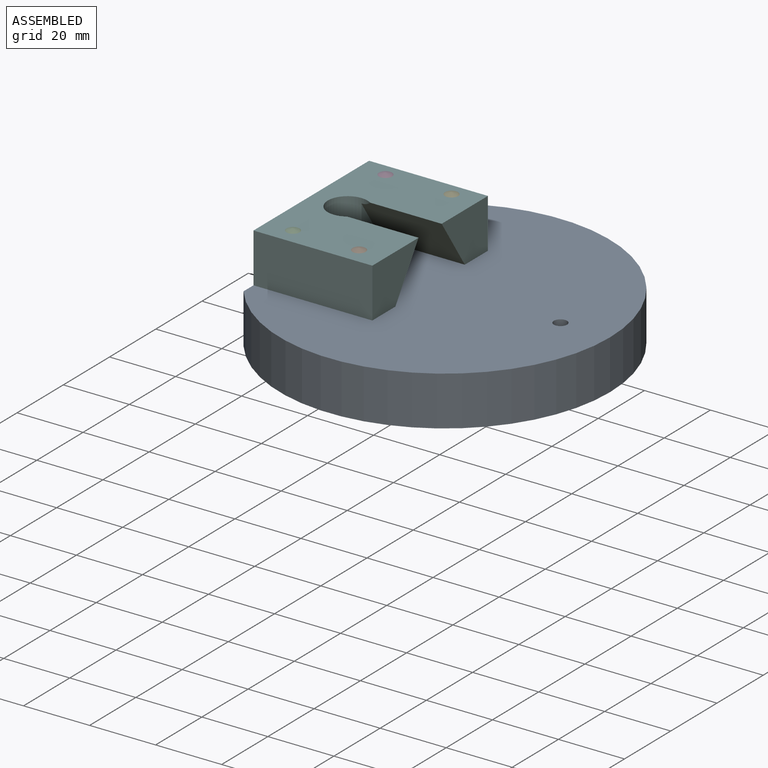
[diagram: assembled view]
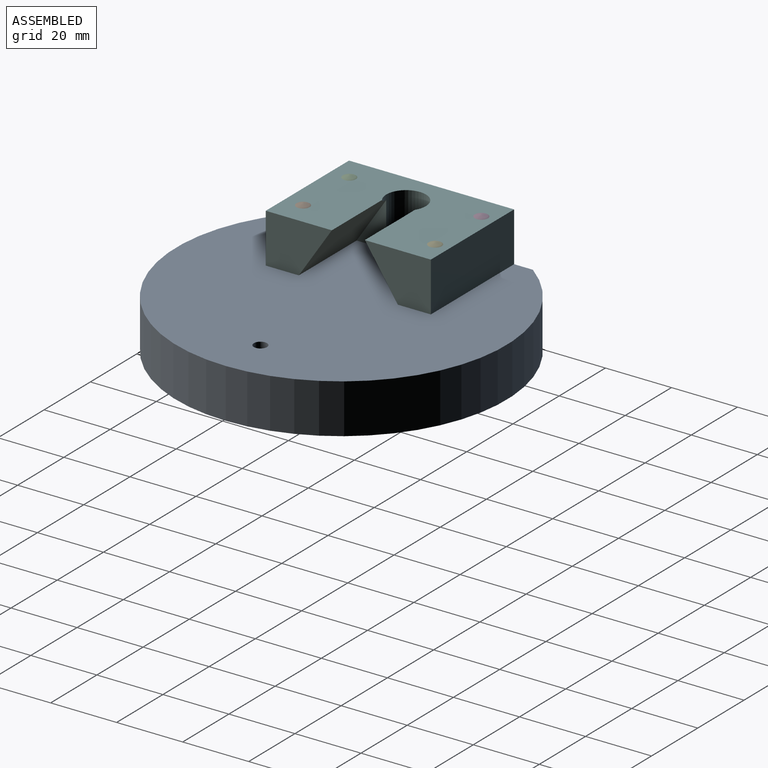
[diagram: assembled view, second angle]
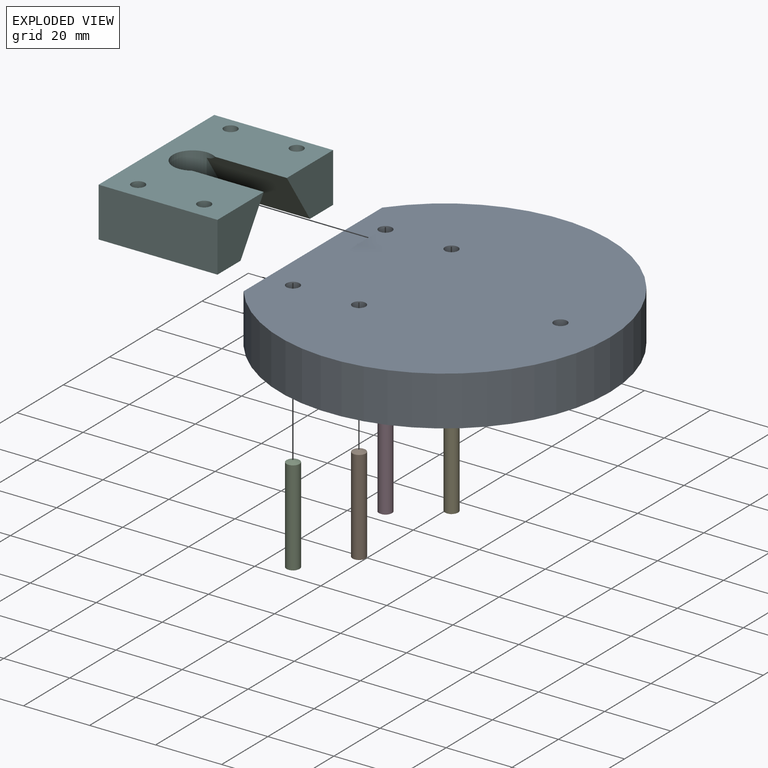
[diagram: exploded view]
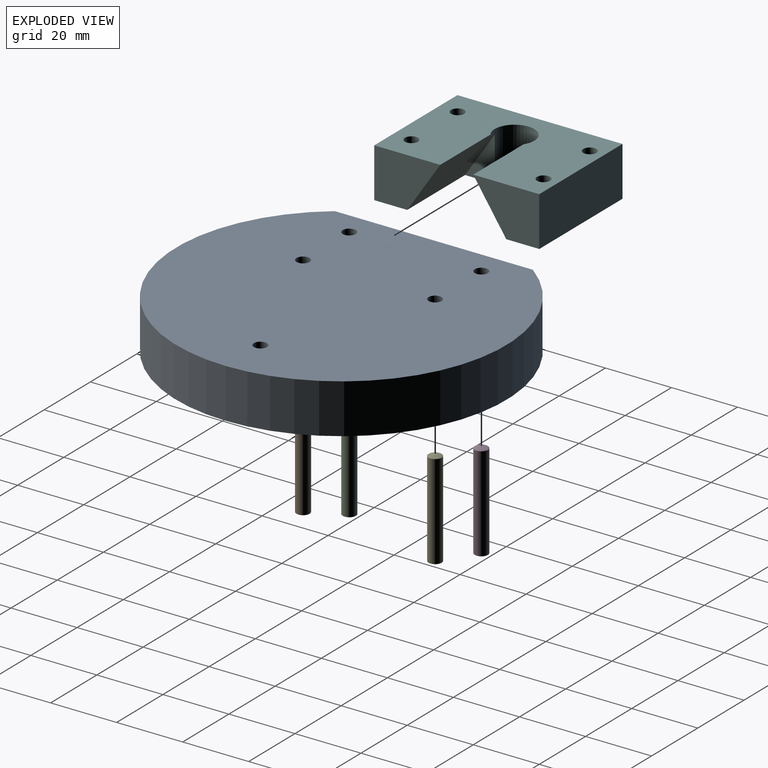
[diagram: exploded view, second angle]
ASSEMBLY  parts=6 mates=6
PART A: 9 faces, bbox 90x100x15 mm
  f0: plane 60x15mm, normal (-1,0,0), area 900mm2, adj f6,f7,f8
  f1: cylinder r=2mm len=15mm, axis (0,0,-1), area 188.5mm2, adj f7,f8
  f2: cylinder r=2mm len=15mm, axis (0,0,-1), area 188.5mm2, adj f7,f8
  f3: cylinder r=2mm len=15mm, axis (0,0,-1), area 188.5mm2, adj f7,f8
  f4: cylinder r=2mm len=15mm, axis (0,0,-1), area 188.5mm2, adj f7,f8
  f5: cylinder r=2mm len=15mm, axis (0,0,-1), area 188.5mm2, adj f7,f8
  f6: cylinder r=50mm len=100mm, axis (0,0,-1), area 3747.1mm2, adj f0,f7,f8
  f7: plane 100x90mm, normal (0,0,1), area 7382.4mm2, adj f0,f1,f2,f3,f4,f5,f6
  f8: plane 100x90mm, normal (0,0,-1), area 7382.4mm2, adj f0,f1,f2,f3,f4,f5,f6
PART B: 3 faces, bbox 30x4x4 mm
  f0: cylinder r=2mm len=28.73mm, axis (1,0,0), area 361.1mm2, adj f1,f2
  f1: revolved ~4x4mm, area 13.5mm2, adj f0
  f2: revolved ~4x4mm, area 13.5mm2, adj f0
PART C: same geometry as B
PART D: same geometry as B
PART E: same geometry as B
PART F: 16 faces, bbox 36x50x15 mm
  f0: plane 13.5x9mm, normal (1,0,0), area 60.8mm2, adj f11,f13,f15
  f1: plane 20x15mm, normal (1,0,0), area 225mm2, adj f3,f6,f11,f12
  f2: plane 20x15mm, normal (1,0,0), area 225mm2, adj f3,f4,f11,f13
  f3: plane 50x36mm, normal (0,0,1), area 1438.7mm2, adj f1,f2,f4,f5,f6,f7,f8,f9
  f4: plane 36x15mm, normal (0,1,0), area 540mm2, adj f2,f3,f5,f11
  f5: plane 50x15mm, normal (-1,0,0), area 750mm2, adj f3,f4,f6,f11
  f6: plane 36x15mm, normal (0,-1,0), area 540mm2, adj f1,f3,f5,f11
  f7: cylinder r=2mm len=15mm, axis (0,0,-1), area 188.5mm2, adj f3,f11
  f8: cylinder r=2mm len=15mm, axis (0,0,-1), area 188.5mm2, adj f3,f11
  f9: cylinder r=2mm len=15mm, axis (0,0,-1), area 188.5mm2, adj f3,f11
  f10: cylinder r=2mm len=15mm, axis (0,0,-1), area 188.5mm2, adj f3,f11
  f11: plane 50x36mm, normal (0,0,-1), area 943.2mm2, adj f0,f1,f2,f4,f5,f6,f7,f8
  f12: plane 25x15mm, normal (0,0.83,-0.55), area 446.6mm2, adj f1,f3,f11,f14,f15
  f13: plane 25x15mm, normal (0,-0.83,-0.55), area 446.6mm2, adj f0,f2,f3,f11,f15
  f14: plane 13.5x9mm, normal (1,0,0), area 60.7mm2, adj f11,f12,f15
  f15: cylinder r=6mm len=15mm, axis (0,0,1), area 289.7mm2, adj f0,f3,f11,f12,f13,f14
PLACE A rot(axis=(-0.96,-0.08,-0.28),0deg) t=(3.34,-119.61,53.3)mm
PLACE B rot(axis=(0,-1,0),90deg) t=(-8.66,-139.61,68.94)mm
PLACE C rot(axis=(0,-1,0),90deg) t=(-28.66,-139.61,68.94)mm
PLACE D rot(axis=(0,-1,0),90deg) t=(-28.66,-99.61,68.94)mm
PLACE E rot(axis=(0,-1,0),90deg) t=(-8.66,-99.61,68.94)mm
PLACE F t=(-18.66,-119.61,68.3)mm
MATE cylindrical F.f10 <-> A.f4  axis (0,0,-1) through (-8.66,-139.61,68.3)mm
MATE cylindrical B.f0 <-> F.f10  axis (0,0,1) through (-8.66,-139.61,83.3)mm
MATE cylindrical E.f0 <-> F.f8  axis (0,0,1) through (-8.66,-99.61,83.3)mm
MATE cylindrical C.f0 <-> F.f9  axis (0,0,1) through (-28.66,-139.61,83.3)mm
MATE planar F.f11 <-> A.f6  axis (0,0,-1) through (-18.66,-145.3,68.3)mm
MATE cylindrical D.f0 <-> F.f7  axis (0,0,1) through (-28.66,-99.61,83.3)mm
